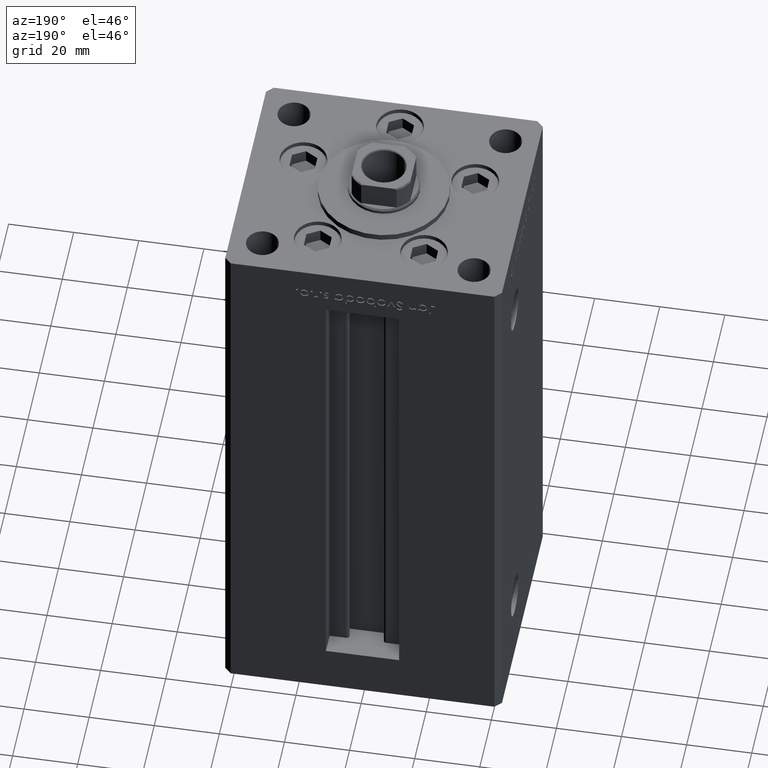
[diagram: clean part render]
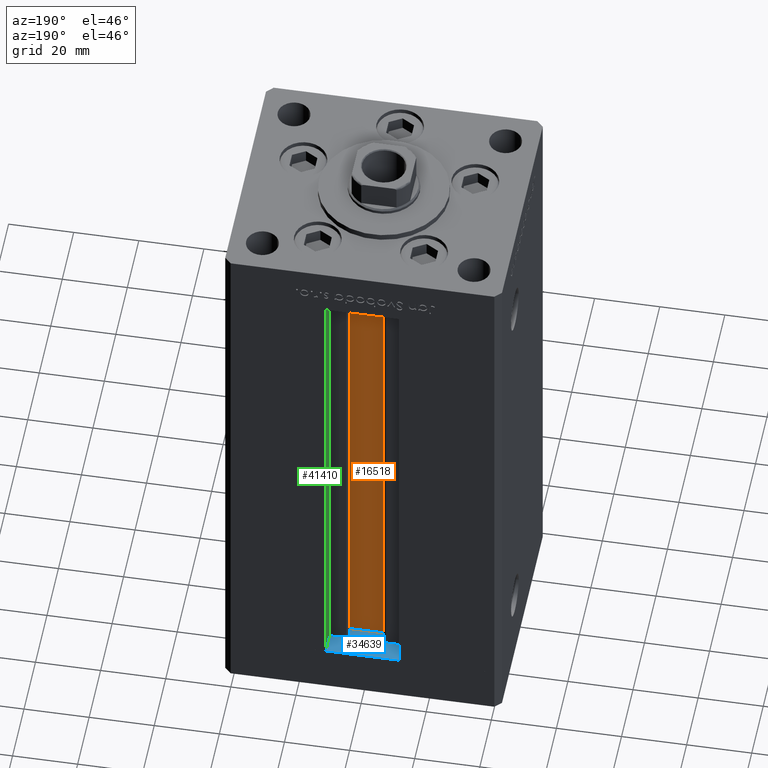
[diagram: same view with three faces highlighted in distinct colors, each labeled with its STEP entity id]
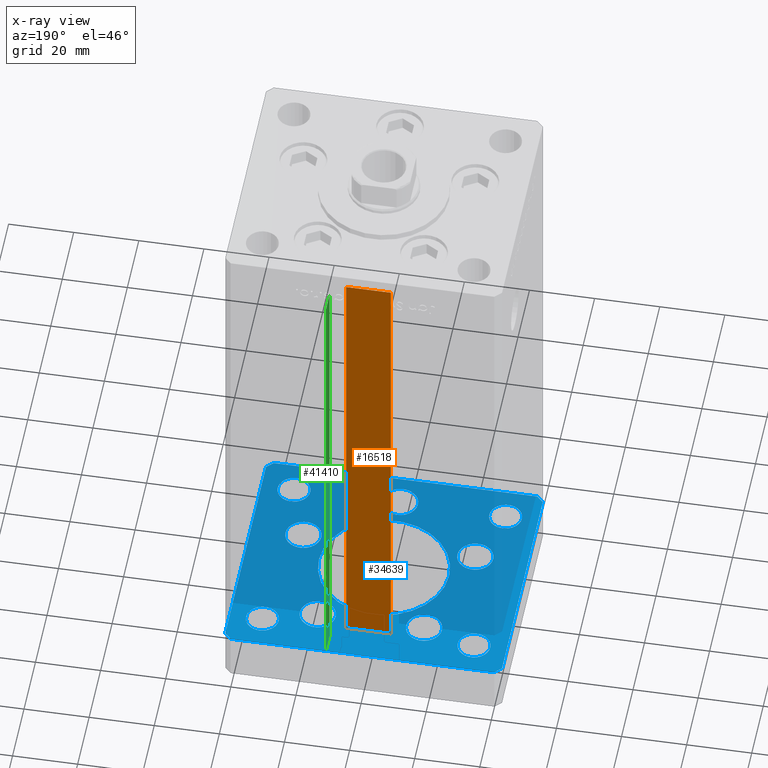
[diagram: x-ray of the same camera — body ghosted, the three highlighted faces saturated]
A machine part, auxiliary view with three faces highlighted in distinct colors.
The next image is the same camera in x-ray (body ghosted, the three faces saturated) — at least one of them is partly hidden behind the body in this view.
Their STEP definitions:

[orange] entity #16518 — the highlighted planar face has unit normal (0, -1, 0).
#238 = DIRECTION ( 'NONE',  ( -1.000000000000000000, 0.000000000000000000, 0.000000000000000000 ) ) ;
#2428 = VECTOR ( 'NONE', #5143, 1000.000000000000000 ) ;
#2656 = CARTESIAN_POINT ( 'NONE',  ( 6.876153656360465938, 26.99999999999986855, 0.000000000000000000 ) ) ;
#2791 = CARTESIAN_POINT ( 'NONE',  ( 6.876153656360465938, 26.99999999999986855, 0.000000000000000000 ) ) ;
#3511 = ORIENTED_EDGE ( 'NONE', *, *, #26045, .F. ) ;
#3572 = DIRECTION ( 'NONE',  ( 1.000000000000000000, -0.000000000000000000, -0.000000000000000000 ) ) ;
#3681 = DIRECTION ( 'NONE',  ( -0.000000000000000000, -0.000000000000000000, 1.000000000000000000 ) ) ;
#5055 = ORIENTED_EDGE ( 'NONE', *, *, #12262, .T. ) ;
#5143 = DIRECTION ( 'NONE',  ( -0.000000000000000000, -0.000000000000000000, 1.000000000000000000 ) ) ;
#8487 = EDGE_CURVE ( 'NONE', #33369, #51733, #44985, .T. ) ;
#8517 = VECTOR ( 'NONE', #238, 1000.000000000000000 ) ;
#12262 = EDGE_CURVE ( 'NONE', #36624, #27440, #42992, .T. ) ;
#14714 = CARTESIAN_POINT ( 'NONE',  ( 6.876153656360465938, 26.99999999999986855, 0.000000000000000000 ) ) ;
#14896 = LINE ( 'NONE', #2791, #38127 ) ;
#16502 = EDGE_LOOP ( 'NONE', ( #33461, #3511, #5055, #39881 ) ) ;
#16518 = ADVANCED_FACE ( 'NONE', ( #18922 ), #35017, .F. ) ;
#18395 = CARTESIAN_POINT ( 'NONE',  ( 6.876153656360465938, 26.99999999999986855, 148.5000000000000000 ) ) ;
#18922 = FACE_OUTER_BOUND ( 'NONE', #16502, .T. ) ;
#19181 = DIRECTION ( 'NONE',  ( 0.000000000000000000, -1.000000000000000000, -0.000000000000000000 ) ) ;
#19816 = EDGE_CURVE ( 'NONE', #51733, #27440, #36626, .T. ) ;
#26045 = EDGE_CURVE ( 'NONE', #36624, #33369, #14896, .T. ) ;
#26235 = AXIS2_PLACEMENT_3D ( 'NONE', #14714, #19181, #35550 ) ;
#27440 = VERTEX_POINT ( 'NONE', #39339 ) ;
#28450 = CARTESIAN_POINT ( 'NONE',  ( -6.876153656360465938, 26.99999999999986855, 0.000000000000000000 ) ) ;
#33369 = VERTEX_POINT ( 'NONE', #2656 ) ;
#33461 = ORIENTED_EDGE ( 'NONE', *, *, #8487, .F. ) ;
#35017 = PLANE ( 'NONE',  #26235 ) ;
#35550 = DIRECTION ( 'NONE',  ( 0.000000000000000000, 0.000000000000000000, -1.000000000000000000 ) ) ;
#36370 = CARTESIAN_POINT ( 'NONE',  ( 0.000000000000000000, 26.99999999999986855, 148.5000000000000000 ) ) ;
#36624 = VERTEX_POINT ( 'NONE', #47947 ) ;
#36626 = LINE ( 'NONE', #36370, #8517 ) ;
#37316 = CARTESIAN_POINT ( 'NONE',  ( 6.876153656360465938, 26.99999999999986855, 0.000000000000000000 ) ) ;
#38127 = VECTOR ( 'NONE', #3572, 1000.000000000000000 ) ;
#39339 = CARTESIAN_POINT ( 'NONE',  ( -6.876153656360465938, 26.99999999999986855, 148.5000000000000000 ) ) ;
#39881 = ORIENTED_EDGE ( 'NONE', *, *, #19816, .F. ) ;
#42992 = LINE ( 'NONE', #28450, #51367 ) ;
#44985 = LINE ( 'NONE', #37316, #2428 ) ;
#47947 = CARTESIAN_POINT ( 'NONE',  ( -6.876153656360465938, 26.99999999999986855, 0.000000000000000000 ) ) ;
#51367 = VECTOR ( 'NONE', #3681, 1000.000000000000000 ) ;
#51733 = VERTEX_POINT ( 'NONE', #18395 ) ;

[blue] entity #34639 — the highlighted planar face has unit normal (0, 0, -1).
#10 = AXIS2_PLACEMENT_3D ( 'NONE', #950, #36560, #4390 ) ;
#303 = VERTEX_POINT ( 'NONE', #48067 ) ;
#365 = ORIENTED_EDGE ( 'NONE', *, *, #19110, .F. ) ;
#481 = CARTESIAN_POINT ( 'NONE',  ( -42.50000000000000711, 35.49999999999997158, -15.00000000000000000 ) ) ;
#699 = LINE ( 'NONE', #4655, #25291 ) ;
#950 = CARTESIAN_POINT ( 'NONE',  ( 32.50000000000000000, 27.49999999999999645, -15.00000000000000000 ) ) ;
#1506 = CARTESIAN_POINT ( 'NONE',  ( 37.50000000000000000, -27.49999999999999645, -15.00000000000000000 ) ) ;
#1680 = AXIS2_PLACEMENT_3D ( 'NONE', #12061, #40797, #7581 ) ;
#1835 = DIRECTION ( 'NONE',  ( 1.000000000000000000, 1.713307136767217096E-16, 0.000000000000000000 ) ) ;
#2042 = FACE_BOUND ( 'NONE', #3831, .T. ) ;
#2224 = EDGE_CURVE ( 'NONE', #26357, #41956, #12360, .T. ) ;
#2281 = CARTESIAN_POINT ( 'NONE',  ( -32.50000000000000000, -27.49999999999999645, -15.00000000000000000 ) ) ;
#2456 = EDGE_CURVE ( 'NONE', #47044, #38234, #38467, .T. ) ;
#2522 = VERTEX_POINT ( 'NONE', #30033 ) ;
#2564 = FACE_BOUND ( 'NONE', #22039, .T. ) ;
#3162 = DIRECTION ( 'NONE',  ( 0.000000000000000000, -0.000000000000000000, -1.000000000000000000 ) ) ;
#3383 = CIRCLE ( 'NONE', #1680, 5.499999999999998224 ) ;
#3831 = EDGE_LOOP ( 'NONE', ( #28772, #23139 ) ) ;
#3903 = AXIS2_PLACEMENT_3D ( 'NONE', #39514, #23414, #51127 ) ;
#4390 = DIRECTION ( 'NONE',  ( 1.000000000000000000, 0.000000000000000000, 0.000000000000000000 ) ) ;
#4655 = CARTESIAN_POINT ( 'NONE',  ( -42.50000000000000000, -35.50000000000000711, -15.00000000000000000 ) ) ;
#5101 = CARTESIAN_POINT ( 'NONE',  ( 40.49999999999991473, 37.50000000000000711, -15.00000000000000000 ) ) ;
#5174 = CARTESIAN_POINT ( 'NONE',  ( 3.429011037612589276E-15, -28.00000000000000000, -15.00000000000000000 ) ) ;
#5270 = CARTESIAN_POINT ( 'NONE',  ( 3.429011037612589276E-15, -28.00000000000000000, -15.00000000000000000 ) ) ;
#5449 = EDGE_CURVE ( 'NONE', #303, #23369, #39382, .T. ) ;
#5748 = EDGE_LOOP ( 'NONE', ( #365, #35457 ) ) ;
#5948 = CIRCLE ( 'NONE', #26161, 5.500000000000000000 ) ;
#6110 = CARTESIAN_POINT ( 'NONE',  ( 42.50000000000000711, -35.50000000000000000, -15.00000000000000000 ) ) ;
#6749 = CIRCLE ( 'NONE', #44650, 5.499999999999998224 ) ;
#6766 = FACE_BOUND ( 'NONE', #49603, .T. ) ;
#6967 = DIRECTION ( 'NONE',  ( 0.7071067811865474617, 0.7071067811865474617, 0.000000000000000000 ) ) ;
#7581 = DIRECTION ( 'NONE',  ( 1.000000000000000000, 0.000000000000000000, 0.000000000000000000 ) ) ;
#7678 = VERTEX_POINT ( 'NONE', #31149 ) ;
#7945 = CIRCLE ( 'NONE', #3903, 5.499999999999998224 ) ;
#8106 = ORIENTED_EDGE ( 'NONE', *, *, #49431, .F. ) ;
#8385 = CARTESIAN_POINT ( 'NONE',  ( 10.82291334290542473, 22.75000000000000000, -15.00000000000000000 ) ) ;
#8548 = ORIENTED_EDGE ( 'NONE', *, *, #46158, .T. ) ;
#8912 = CARTESIAN_POINT ( 'NONE',  ( 32.50000000000000000, -27.49999999999999645, -15.00000000000000000 ) ) ;
#9098 = CIRCLE ( 'NONE', #17509, 5.000000000000004441 ) ;
#9502 = DIRECTION ( 'NONE',  ( 1.000000000000000000, 0.000000000000000000, 0.000000000000000000 ) ) ;
#9858 = ORIENTED_EDGE ( 'NONE', *, *, #24697, .F. ) ;
#9889 = EDGE_LOOP ( 'NONE', ( #14312, #48888 ) ) ;
#9951 = DIRECTION ( 'NONE',  ( 1.000000000000000000, 0.000000000000000000, 0.000000000000000000 ) ) ;
#10216 = FACE_BOUND ( 'NONE', #39760, .T. ) ;
#10247 = AXIS2_PLACEMENT_3D ( 'NONE', #30267, #42150, #50579 ) ;
#10260 = CARTESIAN_POINT ( 'NONE',  ( -40.49999999999999289, -37.50000000000002132, -15.00000000000000000 ) ) ;
#10452 = DIRECTION ( 'NONE',  ( 1.000000000000000000, 0.000000000000000000, 0.000000000000000000 ) ) ;
#10472 = DIRECTION ( 'NONE',  ( -0.000000000000000000, 0.000000000000000000, 1.000000000000000000 ) ) ;
#11358 = DIRECTION ( 'NONE',  ( 0.000000000000000000, -0.000000000000000000, -1.000000000000000000 ) ) ;
#11605 = DIRECTION ( 'NONE',  ( 1.000000000000000000, 0.000000000000000000, 0.000000000000000000 ) ) ;
#11616 = DIRECTION ( 'NONE',  ( 1.000000000000000000, 0.000000000000000000, 0.000000000000000000 ) ) ;
#11623 = CIRCLE ( 'NONE', #13313, 5.000000000000000888 ) ;
#11775 = EDGE_CURVE ( 'NONE', #13887, #22848, #37057, .T. ) ;
#12061 = CARTESIAN_POINT ( 'NONE',  ( 26.39865316429776954, -9.333333333333330373, -15.00000000000000000 ) ) ;
#12186 = CARTESIAN_POINT ( 'NONE',  ( 40.49999999999991473, 37.50000000000000711, -15.00000000000000000 ) ) ;
#12360 = CIRCLE ( 'NONE', #47768, 20.00000000000000000 ) ;
#12368 = EDGE_CURVE ( 'NONE', #2522, #34611, #36373, .T. ) ;
#12489 = CARTESIAN_POINT ( 'NONE',  ( 31.89865316429776954, -9.333333333333330373, -15.00000000000000000 ) ) ;
#13082 = DIRECTION ( 'NONE',  ( 0.000000000000000000, -0.000000000000000000, -1.000000000000000000 ) ) ;
#13127 = DIRECTION ( 'NONE',  ( -1.000000000000000000, 0.000000000000000000, 0.000000000000000000 ) ) ;
#13146 = CARTESIAN_POINT ( 'NONE',  ( -37.50000000000000711, 27.50000000000000355, -15.00000000000000000 ) ) ;
#13236 = EDGE_CURVE ( 'NONE', #41280, #33982, #22492, .T. ) ;
#13313 = AXIS2_PLACEMENT_3D ( 'NONE', #29795, #50893, #9502 ) ;
#13384 = DIRECTION ( 'NONE',  ( -0.000000000000000000, -0.000000000000000000, -1.000000000000000000 ) ) ;
#13399 = AXIS2_PLACEMENT_3D ( 'NONE', #38758, #18960, #30841 ) ;
#13887 = VERTEX_POINT ( 'NONE', #34510 ) ;
#14312 = ORIENTED_EDGE ( 'NONE', *, *, #2224, .F. ) ;
#14321 = CARTESIAN_POINT ( 'NONE',  ( 42.49999999999992895, 35.50000000000000000, -15.00000000000000000 ) ) ;
#14340 = VECTOR ( 'NONE', #45741, 1000.000000000000114 ) ;
#14442 = DIRECTION ( 'NONE',  ( 1.000000000000000000, 0.000000000000000000, 0.000000000000000000 ) ) ;
#14598 = EDGE_CURVE ( 'NONE', #23256, #24950, #28694, .T. ) ;
#14789 = EDGE_CURVE ( 'NONE', #23171, #43656, #5948, .T. ) ;
#14840 = CARTESIAN_POINT ( 'NONE',  ( 20.00000000000000000, 0.000000000000000000, -15.00000000000000000 ) ) ;
#15137 = LINE ( 'NONE', #39141, #48676 ) ;
#15911 = CIRCLE ( 'NONE', #13399, 5.499999999999998224 ) ;
#16567 = DIRECTION ( 'NONE',  ( -0.7071067811865463515, -0.7071067811865487940, 0.000000000000000000 ) ) ;
#16996 = ORIENTED_EDGE ( 'NONE', *, *, #51001, .F. ) ;
#17509 = AXIS2_PLACEMENT_3D ( 'NONE', #2281, #50547, #26786 ) ;
#17513 = CIRCLE ( 'NONE', #40285, 5.500000000000000000 ) ;
#17669 = DIRECTION ( 'NONE',  ( -0.000000000000000000, -0.000000000000000000, -1.000000000000000000 ) ) ;
#17672 = DIRECTION ( 'NONE',  ( 1.000000000000000000, 0.000000000000000000, 0.000000000000000000 ) ) ;
#17711 = CARTESIAN_POINT ( 'NONE',  ( 20.89865316429777309, -9.333333333333330373, -15.00000000000000000 ) ) ;
#17865 = ORIENTED_EDGE ( 'NONE', *, *, #2456, .F. ) ;
#18210 = VERTEX_POINT ( 'NONE', #17711 ) ;
#18437 = ORIENTED_EDGE ( 'NONE', *, *, #51878, .F. ) ;
#18960 = DIRECTION ( 'NONE',  ( 0.000000000000000000, -0.000000000000000000, -1.000000000000000000 ) ) ;
#18985 = CARTESIAN_POINT ( 'NONE',  ( -32.50000000000000000, 27.50000000000000355, -15.00000000000000000 ) ) ;
#19110 = EDGE_CURVE ( 'NONE', #24950, #23256, #46447, .T. ) ;
#19255 = AXIS2_PLACEMENT_3D ( 'NONE', #34030, #17669, #33498 ) ;
#19287 = VECTOR ( 'NONE', #21663, 1000.000000000000000 ) ;
#19742 = DIRECTION ( 'NONE',  ( -1.000000000000000000, 0.000000000000000000, 0.000000000000000000 ) ) ;
#19833 = VERTEX_POINT ( 'NONE', #13146 ) ;
#20019 = CARTESIAN_POINT ( 'NONE',  ( -16.32291334290543006, 22.74999999999999645, -15.00000000000000000 ) ) ;
#20034 = DIRECTION ( 'NONE',  ( 0.000000000000000000, 0.000000000000000000, 1.000000000000000000 ) ) ;
#20429 = ORIENTED_EDGE ( 'NONE', *, *, #12368, .F. ) ;
#20654 = EDGE_CURVE ( 'NONE', #39362, #24377, #48169, .T. ) ;
#21192 = CARTESIAN_POINT ( 'NONE',  ( 0.000000000000000000, 0.000000000000000000, -15.00000000000000000 ) ) ;
#21251 = DIRECTION ( 'NONE',  ( 1.000000000000000000, 0.000000000000000000, 0.000000000000000000 ) ) ;
#21356 = VERTEX_POINT ( 'NONE', #37286 ) ;
#21486 = VERTEX_POINT ( 'NONE', #30575 ) ;
#21663 = DIRECTION ( 'NONE',  ( -1.172770800660376741E-15, 1.000000000000000000, 0.000000000000000000 ) ) ;
#21810 = FACE_BOUND ( 'NONE', #31258, .T. ) ;
#21882 = DIRECTION ( 'NONE',  ( 0.000000000000000000, -0.000000000000000000, -1.000000000000000000 ) ) ;
#21956 = EDGE_LOOP ( 'NONE', ( #51672, #47567 ) ) ;
#22039 = EDGE_LOOP ( 'NONE', ( #43627, #43659 ) ) ;
#22492 = LINE ( 'NONE', #14321, #14340 ) ;
#22548 = EDGE_CURVE ( 'NONE', #34611, #21486, #31001, .T. ) ;
#22595 = FACE_BOUND ( 'NONE', #5748, .T. ) ;
#22813 = ORIENTED_EDGE ( 'NONE', *, *, #41662, .F. ) ;
#22848 = VERTEX_POINT ( 'NONE', #38856 ) ;
#23139 = ORIENTED_EDGE ( 'NONE', *, *, #43217, .F. ) ;
#23171 = VERTEX_POINT ( 'NONE', #31080 ) ;
#23256 = VERTEX_POINT ( 'NONE', #8385 ) ;
#23296 = VECTOR ( 'NONE', #1835, 1000.000000000000000 ) ;
#23369 = VERTEX_POINT ( 'NONE', #1506 ) ;
#23414 = DIRECTION ( 'NONE',  ( 0.000000000000000000, -0.000000000000000000, -1.000000000000000000 ) ) ;
#24266 = CIRCLE ( 'NONE', #33531, 4.999999999999997335 ) ;
#24377 = VERTEX_POINT ( 'NONE', #25711 ) ;
#24389 = ORIENTED_EDGE ( 'NONE', *, *, #20654, .F. ) ;
#24697 = EDGE_CURVE ( 'NONE', #24377, #39362, #33883, .T. ) ;
#24950 = VERTEX_POINT ( 'NONE', #41891 ) ;
#25291 = VECTOR ( 'NONE', #41817, 1000.000000000000000 ) ;
#25564 = DIRECTION ( 'NONE',  ( 1.000000000000000000, 0.000000000000000000, 0.000000000000000000 ) ) ;
#25575 = VERTEX_POINT ( 'NONE', #48584 ) ;
#25711 = CARTESIAN_POINT ( 'NONE',  ( -10.82291334290543183, 22.74999999999999645, -15.00000000000000000 ) ) ;
#26161 = AXIS2_PLACEMENT_3D ( 'NONE', #5270, #41917, #25564 ) ;
#26292 = FACE_BOUND ( 'NONE', #28362, .T. ) ;
#26357 = VERTEX_POINT ( 'NONE', #14840 ) ;
#26416 = AXIS2_PLACEMENT_3D ( 'NONE', #21192, #36762, #33319 ) ;
#26530 = DIRECTION ( 'NONE',  ( 0.000000000000000000, 0.000000000000000000, 1.000000000000000000 ) ) ;
#26599 = CARTESIAN_POINT ( 'NONE',  ( 42.50000000000000711, -35.50000000000000000, -15.00000000000000000 ) ) ;
#26629 = CIRCLE ( 'NONE', #41770, 4.999999999999997335 ) ;
#26676 = CIRCLE ( 'NONE', #45261, 5.000000000000000888 ) ;
#26786 = DIRECTION ( 'NONE',  ( -1.000000000000000000, 0.000000000000000000, 0.000000000000000000 ) ) ;
#27193 = CARTESIAN_POINT ( 'NONE',  ( -27.50000000000000000, -27.49999999999999645, -15.00000000000000000 ) ) ;
#27278 = VERTEX_POINT ( 'NONE', #12489 ) ;
#27287 = EDGE_CURVE ( 'NONE', #33982, #2522, #44682, .T. ) ;
#28292 = CARTESIAN_POINT ( 'NONE',  ( -31.89865316429776954, -9.333333333333337478, -15.00000000000000000 ) ) ;
#28362 = EDGE_LOOP ( 'NONE', ( #46304, #22813 ) ) ;
#28437 = CARTESIAN_POINT ( 'NONE',  ( 32.50000000000000000, -27.49999999999999645, -15.00000000000000000 ) ) ;
#28525 = EDGE_CURVE ( 'NONE', #41956, #26357, #47533, .T. ) ;
#28694 = CIRCLE ( 'NONE', #34601, 5.500000000000001776 ) ;
#28772 = ORIENTED_EDGE ( 'NONE', *, *, #46224, .F. ) ;
#29027 = CARTESIAN_POINT ( 'NONE',  ( 0.000000000000000000, 0.000000000000000000, -15.00000000000000000 ) ) ;
#29577 = EDGE_CURVE ( 'NONE', #18210, #27278, #7945, .T. ) ;
#29728 = CARTESIAN_POINT ( 'NONE',  ( 16.32291334290542295, 22.75000000000000000, -15.00000000000000000 ) ) ;
#29795 = CARTESIAN_POINT ( 'NONE',  ( -32.50000000000000000, 27.50000000000000355, -15.00000000000000000 ) ) ;
#29865 = VERTEX_POINT ( 'NONE', #28292 ) ;
#29985 = FACE_OUTER_BOUND ( 'NONE', #39614, .T. ) ;
#30033 = CARTESIAN_POINT ( 'NONE',  ( -40.50000000000000711, 37.49999999999997868, -15.00000000000000000 ) ) ;
#30252 = CARTESIAN_POINT ( 'NONE',  ( 0.000000000000000000, 0.000000000000000000, -15.00000000000000000 ) ) ;
#30267 = CARTESIAN_POINT ( 'NONE',  ( -16.32291334290543006, 22.74999999999999645, -15.00000000000000000 ) ) ;
#30374 = CARTESIAN_POINT ( 'NONE',  ( -21.82291334290543361, 22.74999999999999645, -15.00000000000000000 ) ) ;
#30387 = EDGE_CURVE ( 'NONE', #23369, #303, #26629, .T. ) ;
#30575 = CARTESIAN_POINT ( 'NONE',  ( -42.50000000000000000, -35.50000000000000711, -15.00000000000000000 ) ) ;
#30766 = PLANE ( 'NONE',  #49367 ) ;
#30841 = DIRECTION ( 'NONE',  ( 1.000000000000000000, 0.000000000000000000, 0.000000000000000000 ) ) ;
#31001 = LINE ( 'NONE', #47630, #32194 ) ;
#31080 = CARTESIAN_POINT ( 'NONE',  ( 5.500000000000003553, -28.00000000000000000, -15.00000000000000000 ) ) ;
#31149 = CARTESIAN_POINT ( 'NONE',  ( -27.50000000000000000, 27.50000000000000355, -15.00000000000000000 ) ) ;
#31258 = EDGE_LOOP ( 'NONE', ( #18437, #34528 ) ) ;
#31638 = DIRECTION ( 'NONE',  ( 1.000000000000000000, 0.000000000000000000, 0.000000000000000000 ) ) ;
#32194 = VECTOR ( 'NONE', #35747, 1000.000000000000000 ) ;
#32830 = VECTOR ( 'NONE', #16567, 1000.000000000000000 ) ;
#32949 = AXIS2_PLACEMENT_3D ( 'NONE', #29728, #41608, #38872 ) ;
#33055 = CARTESIAN_POINT ( 'NONE',  ( 42.49999999999992895, 35.50000000000000000, -15.00000000000000000 ) ) ;
#33319 = DIRECTION ( 'NONE',  ( 1.000000000000000000, 0.000000000000000000, 0.000000000000000000 ) ) ;
#33498 = DIRECTION ( 'NONE',  ( -1.000000000000000000, 0.000000000000000000, 0.000000000000000000 ) ) ;
#33531 = AXIS2_PLACEMENT_3D ( 'NONE', #50281, #26530, #10452 ) ;
#33883 = CIRCLE ( 'NONE', #44861, 5.500000000000000000 ) ;
#33982 = VERTEX_POINT ( 'NONE', #12186 ) ;
#34030 = CARTESIAN_POINT ( 'NONE',  ( -32.50000000000000000, -27.49999999999999645, -15.00000000000000000 ) ) ;
#34487 = CARTESIAN_POINT ( 'NONE',  ( -26.39865316429776954, -9.333333333333337478, -15.00000000000000000 ) ) ;
#34510 = CARTESIAN_POINT ( 'NONE',  ( 37.50000000000000000, 27.49999999999999645, -15.00000000000000000 ) ) ;
#34528 = ORIENTED_EDGE ( 'NONE', *, *, #29577, .F. ) ;
#34601 = AXIS2_PLACEMENT_3D ( 'NONE', #47511, #11358, #11616 ) ;
#34611 = VERTEX_POINT ( 'NONE', #481 ) ;
#34639 = ADVANCED_FACE ( 'NONE', ( #46361, #10216, #26292, #21810, #22595, #6766, #51076, #2564, #29985, #38162, #2042 ), #30766, .F. ) ;
#35457 = ORIENTED_EDGE ( 'NONE', *, *, #14598, .F. ) ;
#35662 = VECTOR ( 'NONE', #37274, 1000.000000000000000 ) ;
#35702 = CARTESIAN_POINT ( 'NONE',  ( -20.00000000000000000, 2.449293598294706513E-15, -15.00000000000000000 ) ) ;
#35747 = DIRECTION ( 'NONE',  ( 9.773090005503140331E-17, -1.000000000000000000, 0.000000000000000000 ) ) ;
#35859 = ORIENTED_EDGE ( 'NONE', *, *, #13236, .F. ) ;
#36048 = CARTESIAN_POINT ( 'NONE',  ( -5.499999999999996447, -28.00000000000000000, -15.00000000000000000 ) ) ;
#36373 = LINE ( 'NONE', #44552, #32830 ) ;
#36560 = DIRECTION ( 'NONE',  ( 0.000000000000000000, 0.000000000000000000, 1.000000000000000000 ) ) ;
#36762 = DIRECTION ( 'NONE',  ( 0.000000000000000000, -0.000000000000000000, -1.000000000000000000 ) ) ;
#37057 = CIRCLE ( 'NONE', #10, 4.999999999999997335 ) ;
#37274 = DIRECTION ( 'NONE',  ( -1.000000000000000000, -3.426614273534436165E-16, 0.000000000000000000 ) ) ;
#37286 = CARTESIAN_POINT ( 'NONE',  ( -37.50000000000000711, -27.49999999999999645, -15.00000000000000000 ) ) ;
#38035 = EDGE_CURVE ( 'NONE', #7678, #19833, #26676, .T. ) ;
#38162 = FACE_BOUND ( 'NONE', #21956, .T. ) ;
#38234 = VERTEX_POINT ( 'NONE', #45876 ) ;
#38467 = LINE ( 'NONE', #10260, #23296 ) ;
#38758 = CARTESIAN_POINT ( 'NONE',  ( -26.39865316429776954, -9.333333333333337478, -15.00000000000000000 ) ) ;
#38856 = CARTESIAN_POINT ( 'NONE',  ( 27.50000000000000355, 27.49999999999999645, -15.00000000000000000 ) ) ;
#38872 = DIRECTION ( 'NONE',  ( 1.000000000000000000, 0.000000000000000000, 0.000000000000000000 ) ) ;
#39141 = CARTESIAN_POINT ( 'NONE',  ( 40.50000000000000000, -37.50000000000000711, -15.00000000000000000 ) ) ;
#39362 = VERTEX_POINT ( 'NONE', #30374 ) ;
#39382 = CIRCLE ( 'NONE', #46147, 4.999999999999997335 ) ;
#39486 = CIRCLE ( 'NONE', #19255, 5.000000000000004441 ) ;
#39514 = CARTESIAN_POINT ( 'NONE',  ( 26.39865316429776954, -9.333333333333330373, -15.00000000000000000 ) ) ;
#39614 = EDGE_LOOP ( 'NONE', ( #16996, #45381, #20429, #40639, #35859, #8106, #40682, #17865 ) ) ;
#39760 = EDGE_LOOP ( 'NONE', ( #48306, #46255 ) ) ;
#40285 = AXIS2_PLACEMENT_3D ( 'NONE', #5174, #13082, #21251 ) ;
#40578 = DIRECTION ( 'NONE',  ( -0.000000000000000000, -0.000000000000000000, -1.000000000000000000 ) ) ;
#40607 = EDGE_CURVE ( 'NONE', #19833, #7678, #11623, .T. ) ;
#40639 = ORIENTED_EDGE ( 'NONE', *, *, #27287, .F. ) ;
#40682 = ORIENTED_EDGE ( 'NONE', *, *, #41123, .F. ) ;
#40797 = DIRECTION ( 'NONE',  ( 0.000000000000000000, -0.000000000000000000, -1.000000000000000000 ) ) ;
#41123 = EDGE_CURVE ( 'NONE', #38234, #45896, #15137, .T. ) ;
#41280 = VERTEX_POINT ( 'NONE', #33055 ) ;
#41492 = ORIENTED_EDGE ( 'NONE', *, *, #11775, .T. ) ;
#41608 = DIRECTION ( 'NONE',  ( 0.000000000000000000, -0.000000000000000000, -1.000000000000000000 ) ) ;
#41662 = EDGE_CURVE ( 'NONE', #43656, #23171, #17513, .T. ) ;
#41770 = AXIS2_PLACEMENT_3D ( 'NONE', #8912, #13384, #13127 ) ;
#41817 = DIRECTION ( 'NONE',  ( 0.7071067811865463515, -0.7071067811865487940, 0.000000000000000000 ) ) ;
#41891 = CARTESIAN_POINT ( 'NONE',  ( 21.82291334290542650, 22.75000000000000000, -15.00000000000000000 ) ) ;
#41917 = DIRECTION ( 'NONE',  ( 0.000000000000000000, -0.000000000000000000, -1.000000000000000000 ) ) ;
#41956 = VERTEX_POINT ( 'NONE', #35702 ) ;
#42150 = DIRECTION ( 'NONE',  ( 0.000000000000000000, -0.000000000000000000, -1.000000000000000000 ) ) ;
#42250 = LINE ( 'NONE', #6110, #19287 ) ;
#43217 = EDGE_CURVE ( 'NONE', #21356, #49562, #39486, .T. ) ;
#43298 = EDGE_CURVE ( 'NONE', #29865, #25575, #15911, .T. ) ;
#43627 = ORIENTED_EDGE ( 'NONE', *, *, #38035, .T. ) ;
#43656 = VERTEX_POINT ( 'NONE', #36048 ) ;
#43659 = ORIENTED_EDGE ( 'NONE', *, *, #40607, .T. ) ;
#44552 = CARTESIAN_POINT ( 'NONE',  ( -40.50000000000000711, 37.49999999999997868, -15.00000000000000000 ) ) ;
#44650 = AXIS2_PLACEMENT_3D ( 'NONE', #34487, #50580, #14442 ) ;
#44682 = LINE ( 'NONE', #5101, #35662 ) ;
#44861 = AXIS2_PLACEMENT_3D ( 'NONE', #20019, #3162, #31638 ) ;
#45261 = AXIS2_PLACEMENT_3D ( 'NONE', #18985, #20034, #11605 ) ;
#45381 = ORIENTED_EDGE ( 'NONE', *, *, #22548, .F. ) ;
#45741 = DIRECTION ( 'NONE',  ( -0.7071067811865474617, 0.7071067811865474617, 0.000000000000000000 ) ) ;
#45876 = CARTESIAN_POINT ( 'NONE',  ( 40.50000000000000000, -37.50000000000000711, -15.00000000000000000 ) ) ;
#45896 = VERTEX_POINT ( 'NONE', #26599 ) ;
#46147 = AXIS2_PLACEMENT_3D ( 'NONE', #28437, #40578, #19742 ) ;
#46158 = EDGE_CURVE ( 'NONE', #22848, #13887, #24266, .T. ) ;
#46224 = EDGE_CURVE ( 'NONE', #49562, #21356, #9098, .T. ) ;
#46255 = ORIENTED_EDGE ( 'NONE', *, *, #43298, .F. ) ;
#46304 = ORIENTED_EDGE ( 'NONE', *, *, #14789, .F. ) ;
#46361 = FACE_BOUND ( 'NONE', #9889, .T. ) ;
#46447 = CIRCLE ( 'NONE', #32949, 5.500000000000001776 ) ;
#47044 = VERTEX_POINT ( 'NONE', #51914 ) ;
#47511 = CARTESIAN_POINT ( 'NONE',  ( 16.32291334290542295, 22.75000000000000000, -15.00000000000000000 ) ) ;
#47533 = CIRCLE ( 'NONE', #26416, 20.00000000000000000 ) ;
#47567 = ORIENTED_EDGE ( 'NONE', *, *, #5449, .F. ) ;
#47630 = CARTESIAN_POINT ( 'NONE',  ( -42.50000000000000711, 35.49999999999997158, -15.00000000000000000 ) ) ;
#47768 = AXIS2_PLACEMENT_3D ( 'NONE', #29027, #21882, #17672 ) ;
#48067 = CARTESIAN_POINT ( 'NONE',  ( 27.50000000000000355, -27.49999999999999645, -15.00000000000000000 ) ) ;
#48169 = CIRCLE ( 'NONE', #10247, 5.500000000000000000 ) ;
#48306 = ORIENTED_EDGE ( 'NONE', *, *, #50778, .F. ) ;
#48584 = CARTESIAN_POINT ( 'NONE',  ( -20.89865316429777309, -9.333333333333337478, -15.00000000000000000 ) ) ;
#48676 = VECTOR ( 'NONE', #6967, 1000.000000000000114 ) ;
#48888 = ORIENTED_EDGE ( 'NONE', *, *, #28525, .F. ) ;
#49367 = AXIS2_PLACEMENT_3D ( 'NONE', #30252, #10472, #9951 ) ;
#49431 = EDGE_CURVE ( 'NONE', #45896, #41280, #42250, .T. ) ;
#49562 = VERTEX_POINT ( 'NONE', #27193 ) ;
#49603 = EDGE_LOOP ( 'NONE', ( #9858, #24389 ) ) ;
#50281 = CARTESIAN_POINT ( 'NONE',  ( 32.50000000000000000, 27.49999999999999645, -15.00000000000000000 ) ) ;
#50547 = DIRECTION ( 'NONE',  ( -0.000000000000000000, -0.000000000000000000, -1.000000000000000000 ) ) ;
#50579 = DIRECTION ( 'NONE',  ( 1.000000000000000000, 0.000000000000000000, 0.000000000000000000 ) ) ;
#50580 = DIRECTION ( 'NONE',  ( 0.000000000000000000, -0.000000000000000000, -1.000000000000000000 ) ) ;
#50778 = EDGE_CURVE ( 'NONE', #25575, #29865, #6749, .T. ) ;
#50893 = DIRECTION ( 'NONE',  ( 0.000000000000000000, 0.000000000000000000, 1.000000000000000000 ) ) ;
#51001 = EDGE_CURVE ( 'NONE', #21486, #47044, #699, .T. ) ;
#51076 = FACE_BOUND ( 'NONE', #51433, .T. ) ;
#51127 = DIRECTION ( 'NONE',  ( 1.000000000000000000, 0.000000000000000000, 0.000000000000000000 ) ) ;
#51433 = EDGE_LOOP ( 'NONE', ( #41492, #8548 ) ) ;
#51672 = ORIENTED_EDGE ( 'NONE', *, *, #30387, .F. ) ;
#51878 = EDGE_CURVE ( 'NONE', #27278, #18210, #3383, .T. ) ;
#51914 = CARTESIAN_POINT ( 'NONE',  ( -40.49999999999999289, -37.50000000000002132, -15.00000000000000000 ) ) ;

[green] entity #41410 — the highlighted planar face has unit normal (1, 0, 0).
#511 = CARTESIAN_POINT ( 'NONE',  ( 11.25000000000000000, 30.99999999999999289, 0.000000000000000000 ) ) ;
#724 = CARTESIAN_POINT ( 'NONE',  ( 11.24999999999999289, 37.50000000000000000, 148.5000000000000000 ) ) ;
#973 = DIRECTION ( 'NONE',  ( 0.000000000000000000, 1.000000000000000000, 0.000000000000000000 ) ) ;
#1350 = LINE ( 'NONE', #17165, #44482 ) ;
#1368 = VERTEX_POINT ( 'NONE', #511 ) ;
#1698 = CARTESIAN_POINT ( 'NONE',  ( 11.25000000000000000, 0.000000000000000000, 148.5000000000000000 ) ) ;
#5436 = LINE ( 'NONE', #29689, #10112 ) ;
#6194 = DIRECTION ( 'NONE',  ( -0.000000000000000000, -0.000000000000000000, 1.000000000000000000 ) ) ;
#7140 = EDGE_CURVE ( 'NONE', #1368, #35723, #1350, .T. ) ;
#8459 = EDGE_CURVE ( 'NONE', #17485, #35723, #13055, .T. ) ;
#10112 = VECTOR ( 'NONE', #973, 1000.000000000000000 ) ;
#10271 = VERTEX_POINT ( 'NONE', #23494 ) ;
#13055 = LINE ( 'NONE', #1698, #18404 ) ;
#17165 = CARTESIAN_POINT ( 'NONE',  ( 11.25000000000000000, 30.99999999999999289, 0.000000000000000000 ) ) ;
#17485 = VERTEX_POINT ( 'NONE', #724 ) ;
#18404 = VECTOR ( 'NONE', #45504, 1000.000000000000000 ) ;
#18770 = PLANE ( 'NONE',  #42800 ) ;
#21334 = ORIENTED_EDGE ( 'NONE', *, *, #52005, .F. ) ;
#21966 = ORIENTED_EDGE ( 'NONE', *, *, #7140, .T. ) ;
#22721 = EDGE_LOOP ( 'NONE', ( #32759, #21334, #21966, #35072 ) ) ;
#22738 = FACE_OUTER_BOUND ( 'NONE', #22721, .T. ) ;
#23314 = CARTESIAN_POINT ( 'NONE',  ( 11.25000000000000000, 30.99999999999999289, 148.5000000000000000 ) ) ;
#23494 = CARTESIAN_POINT ( 'NONE',  ( 11.25000000000000000, 37.50000000000000000, 0.000000000000000000 ) ) ;
#24040 = DIRECTION ( 'NONE',  ( 0.000000000000000000, 0.000000000000000000, -1.000000000000000000 ) ) ;
#29689 = CARTESIAN_POINT ( 'NONE',  ( 11.25000000000000000, 30.99999999999999289, 0.000000000000000000 ) ) ;
#32759 = ORIENTED_EDGE ( 'NONE', *, *, #41718, .F. ) ;
#34868 = CARTESIAN_POINT ( 'NONE',  ( 11.25000000000000000, 30.99999999999999289, 0.000000000000000000 ) ) ;
#35072 = ORIENTED_EDGE ( 'NONE', *, *, #8459, .F. ) ;
#35723 = VERTEX_POINT ( 'NONE', #23314 ) ;
#40137 = DIRECTION ( 'NONE',  ( 1.000000000000000000, -0.000000000000000000, 0.000000000000000000 ) ) ;
#41410 = ADVANCED_FACE ( 'NONE', ( #22738 ), #18770, .F. ) ;
#41718 = EDGE_CURVE ( 'NONE', #10271, #17485, #49989, .T. ) ;
#42336 = CARTESIAN_POINT ( 'NONE',  ( 11.25000000000000000, 37.50000000000000000, 0.000000000000000000 ) ) ;
#42800 = AXIS2_PLACEMENT_3D ( 'NONE', #34868, #40137, #24040 ) ;
#44482 = VECTOR ( 'NONE', #44623, 1000.000000000000000 ) ;
#44504 = VECTOR ( 'NONE', #6194, 1000.000000000000000 ) ;
#44623 = DIRECTION ( 'NONE',  ( -0.000000000000000000, -0.000000000000000000, 1.000000000000000000 ) ) ;
#45504 = DIRECTION ( 'NONE',  ( -0.000000000000000000, -1.000000000000000000, 0.000000000000000000 ) ) ;
#49989 = LINE ( 'NONE', #42336, #44504 ) ;
#52005 = EDGE_CURVE ( 'NONE', #1368, #10271, #5436, .T. ) ;